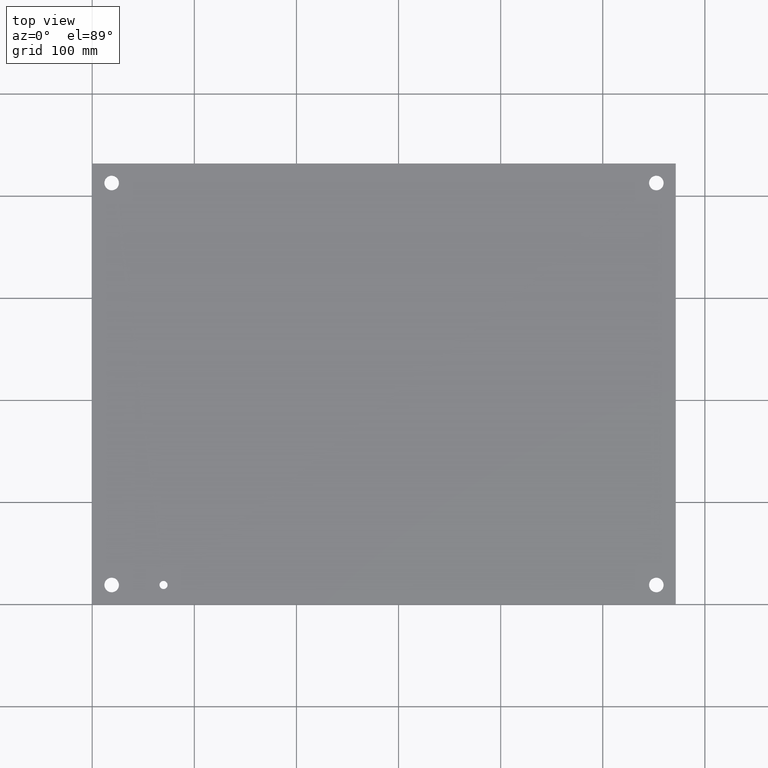
[diagram: clean part render]
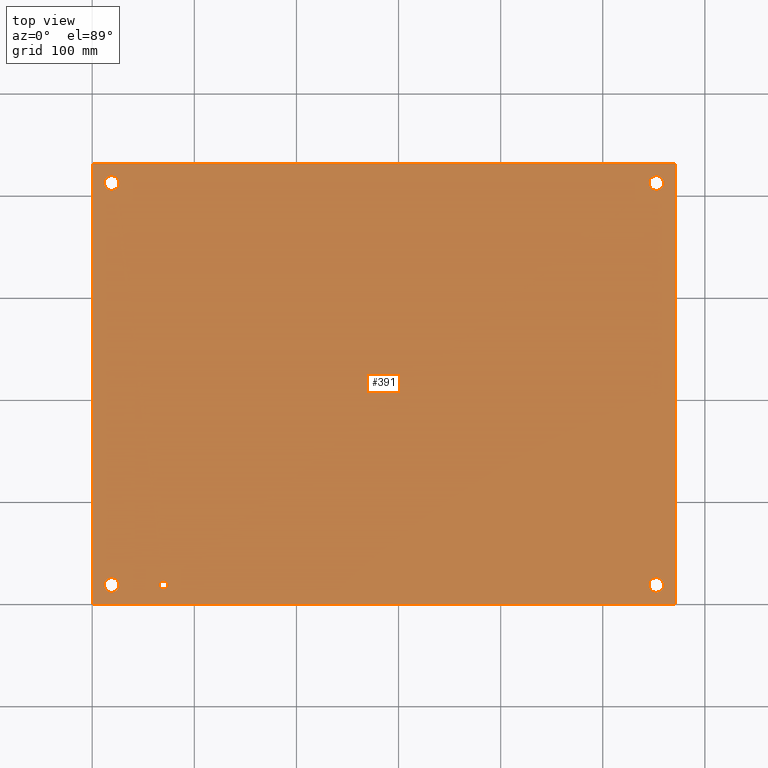
[diagram: same view with one face highlighted and labeled with its STEP entity id]
A machine part, top view. The second image highlights one B-rep face of the part: STEP entity #391.
In plain terms, the highlighted planar face has unit normal (0, 0, 1).
Its self-contained STEP definition (entity closure, byte-faithful):
#79=CARTESIAN_POINT('',(2.905999999999999,0.749999999999999,0.074));
#80=VERTEX_POINT('',#79);
#81=CARTESIAN_POINT('',(2.749999999999999,0.749999999999999,0.074));
#82=DIRECTION('',(0.0,0.0,-1.0));
#83=DIRECTION('',(1.0,0.0,0.0));
#84=AXIS2_PLACEMENT_3D('',#81,#82,#83);
#85=CIRCLE('',#84,0.156);
#86=EDGE_CURVE('',#80,#80,#85,.T.);
#107=CARTESIAN_POINT('',(22.031500000000001,0.750000000000006,0.074));
#108=VERTEX_POINT('',#107);
#109=CARTESIAN_POINT('',(21.75,0.750000000000006,0.074));
#110=DIRECTION('',(0.0,0.0,-1.0));
#111=DIRECTION('',(1.0,0.0,0.0));
#112=AXIS2_PLACEMENT_3D('',#109,#110,#111);
#113=CIRCLE('',#112,0.2815);
#114=EDGE_CURVE('',#108,#108,#113,.T.);
#135=CARTESIAN_POINT('',(1.0315,0.75,0.074));
#136=VERTEX_POINT('',#135);
#137=CARTESIAN_POINT('',(0.75,0.75,0.074));
#138=DIRECTION('',(0.0,0.0,-1.0));
#139=DIRECTION('',(1.0,0.0,0.0));
#140=AXIS2_PLACEMENT_3D('',#137,#138,#139);
#141=CIRCLE('',#140,0.2815);
#142=EDGE_CURVE('',#136,#136,#141,.T.);
#163=CARTESIAN_POINT('',(22.031499999999994,16.250000000000007,0.074));
#164=VERTEX_POINT('',#163);
#165=CARTESIAN_POINT('',(21.749999999999993,16.250000000000007,0.074));
#166=DIRECTION('',(0.0,0.0,-1.0));
#167=DIRECTION('',(1.0,0.0,0.0));
#168=AXIS2_PLACEMENT_3D('',#165,#166,#167);
#169=CIRCLE('',#168,0.2815);
#170=EDGE_CURVE('',#164,#164,#169,.T.);
#191=CARTESIAN_POINT('',(1.031499999999995,16.250000000000004,0.074));
#192=VERTEX_POINT('',#191);
#193=CARTESIAN_POINT('',(0.749999999999995,16.250000000000004,0.074));
#194=DIRECTION('',(0.0,0.0,-1.0));
#195=DIRECTION('',(1.0,0.0,0.0));
#196=AXIS2_PLACEMENT_3D('',#193,#194,#195);
#197=CIRCLE('',#196,0.2815);
#198=EDGE_CURVE('',#192,#192,#197,.T.);
#219=CARTESIAN_POINT('',(0.0,0.0,0.074));
#220=VERTEX_POINT('',#219);
#221=CARTESIAN_POINT('',(-5.204749E-015,17.000000000000004,0.074));
#222=VERTEX_POINT('',#221);
#223=CARTESIAN_POINT('',(0.0,0.0,0.074));
#224=DIRECTION('',(0.0,1.0,0.0));
#225=VECTOR('',#224,17.000000000000004);
#226=LINE('',#223,#225);
#227=EDGE_CURVE('',#220,#222,#226,.T.);
#259=CARTESIAN_POINT('',(22.499999999999996,17.000000000000011,0.074));
#260=VERTEX_POINT('',#259);
#261=CARTESIAN_POINT('',(-7.105427E-015,17.000000000000004,0.074));
#262=DIRECTION('',(1.0,0.0,0.0));
#263=VECTOR('',#262,22.500000000000004);
#264=LINE('',#261,#263);
#265=EDGE_CURVE('',#222,#260,#264,.T.);
#290=CARTESIAN_POINT('',(22.5,0.0,0.074));
#291=VERTEX_POINT('',#290);
#292=CARTESIAN_POINT('',(22.499999999999996,17.000000000000011,0.074));
#293=DIRECTION('',(0.0,-1.0,0.0));
#294=VECTOR('',#293,17.000000000000011);
#295=LINE('',#292,#294);
#296=EDGE_CURVE('',#260,#291,#295,.T.);
#321=CARTESIAN_POINT('',(22.5,0.0,0.074));
#322=DIRECTION('',(-1.0,0.0,0.0));
#323=VECTOR('',#322,22.5);
#324=LINE('',#321,#323);
#325=EDGE_CURVE('',#291,#220,#324,.T.);
#365=CARTESIAN_POINT('',(11.249999999999998,8.500000000000005,0.074));
#366=DIRECTION('',(0.0,0.0,1.0));
#367=DIRECTION('',(1.0,0.0,0.0));
#368=AXIS2_PLACEMENT_3D('',#365,#366,#367);
#369=PLANE('',#368);
#370=ORIENTED_EDGE('',*,*,#227,.F.);
#371=ORIENTED_EDGE('',*,*,#325,.F.);
#372=ORIENTED_EDGE('',*,*,#296,.F.);
#373=ORIENTED_EDGE('',*,*,#265,.F.);
#374=EDGE_LOOP('',(#370,#371,#372,#373));
#375=FACE_OUTER_BOUND('',#374,.T.);
#376=ORIENTED_EDGE('',*,*,#86,.T.);
#377=EDGE_LOOP('',(#376));
#378=FACE_BOUND('',#377,.T.);
#379=ORIENTED_EDGE('',*,*,#114,.T.);
#380=EDGE_LOOP('',(#379));
#381=FACE_BOUND('',#380,.T.);
#382=ORIENTED_EDGE('',*,*,#142,.T.);
#383=EDGE_LOOP('',(#382));
#384=FACE_BOUND('',#383,.T.);
#385=ORIENTED_EDGE('',*,*,#170,.T.);
#386=EDGE_LOOP('',(#385));
#387=FACE_BOUND('',#386,.T.);
#388=ORIENTED_EDGE('',*,*,#198,.T.);
#389=EDGE_LOOP('',(#388));
#390=FACE_BOUND('',#389,.T.);
#391=ADVANCED_FACE('',(#375,#378,#381,#384,#387,#390),#369,.T.);